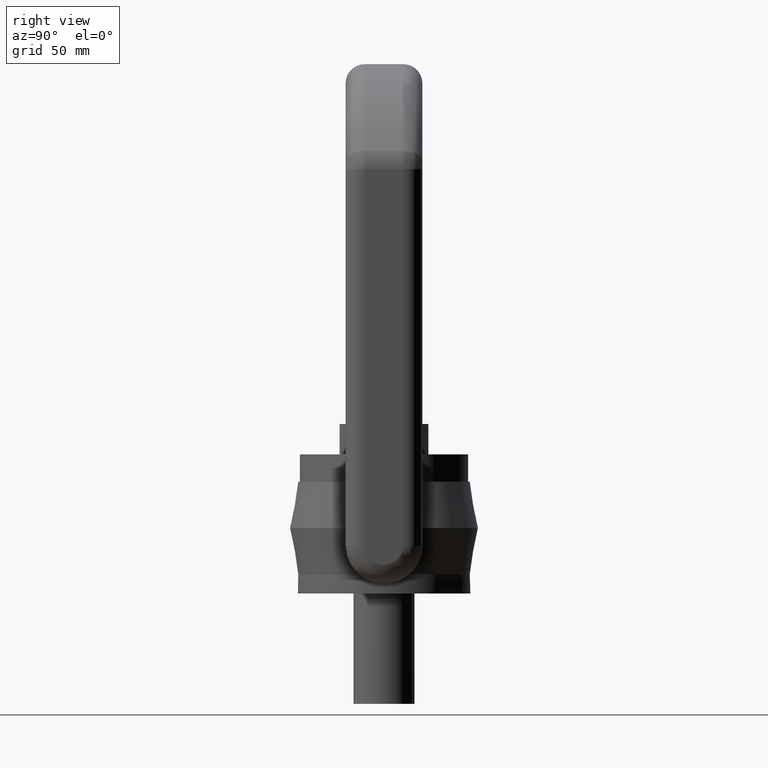
[diagram: clean part render]
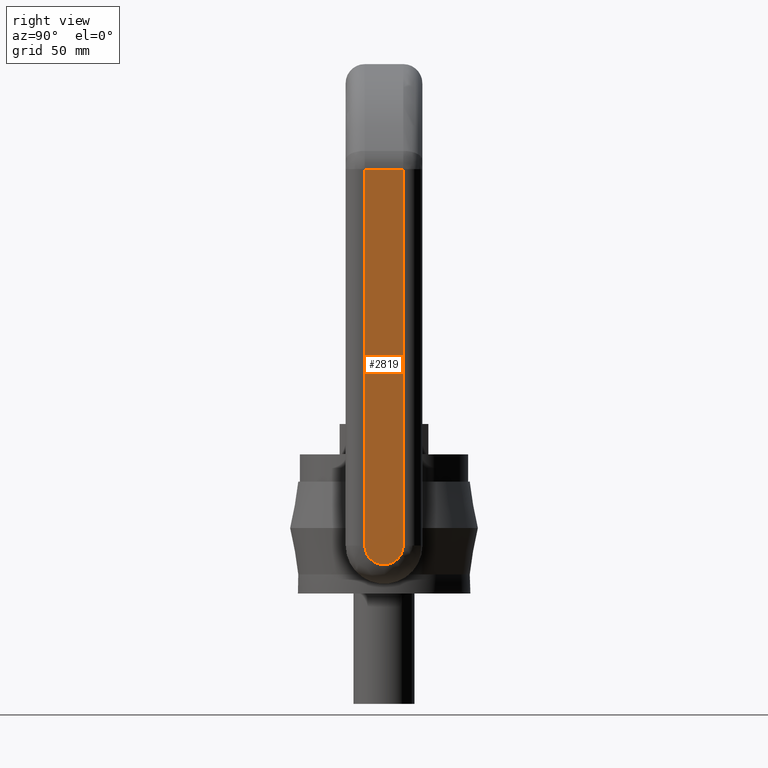
[diagram: same view with one face highlighted and labeled with its STEP entity id]
A machine part, right view. The second image highlights one B-rep face of the part: STEP entity #2819.
In plain terms, the highlighted planar face has unit normal (-1, 0, -0).
Its self-contained STEP definition (entity closure, byte-faithful):
#1867=LINE('',#7754,#2175);
#1868=LINE('',#7756,#2176);
#1869=LINE('',#7758,#2177);
#2175=VECTOR('',#6354,1.);
#2176=VECTOR('',#6355,1.);
#2177=VECTOR('',#6356,1.);
#2459=FACE_OUTER_BOUND('',#3197,.T.);
#2690=PLANE('',#5903);
#2819=ADVANCED_FACE('',(#2459),#2690,.F.);
#3197=EDGE_LOOP('',(#3735,#3736,#3737,#3738));
#3735=ORIENTED_EDGE('',*,*,#5364,.T.);
#3736=ORIENTED_EDGE('',*,*,#5365,.T.);
#3737=ORIENTED_EDGE('',*,*,#5366,.T.);
#3738=ORIENTED_EDGE('',*,*,#5367,.T.);
#4923=VERTEX_POINT('',#7752);
#4924=VERTEX_POINT('',#7753);
#4925=VERTEX_POINT('',#7755);
#4926=VERTEX_POINT('',#7757);
#5364=EDGE_CURVE('',#4923,#4924,#5790,.T.);
#5365=EDGE_CURVE('',#4924,#4925,#1867,.T.);
#5366=EDGE_CURVE('',#4925,#4926,#1868,.T.);
#5367=EDGE_CURVE('',#4926,#4923,#1869,.T.);
#5790=CIRCLE('',#5902,11.9999999999999);
#5902=AXIS2_PLACEMENT_3D('',#7751,#6352,#6353);
#5903=AXIS2_PLACEMENT_3D('',#7759,#6357,#6358);
#6352=DIRECTION('',(1.,0.,1.04738021191052E-16));
#6353=DIRECTION('',(0.,0.,1.));
#6354=DIRECTION('',(-1.04738021191052E-16,2.45391833600033E-31,1.));
#6355=DIRECTION('',(0.,-1.,0.));
#6356=DIRECTION('',(1.04738021191052E-16,0.,-1.));
#6357=DIRECTION('',(-1.,0.,-1.04738021191052E-16));
#6358=DIRECTION('',(-1.11022302462516E-16,0.,1.));
#7751=CARTESIAN_POINT('',(94.,-9.69599696040654E-14,29.9999999999999));
#7752=CARTESIAN_POINT('',(94.,-12.,29.9999999999999));
#7753=CARTESIAN_POINT('',(94.,11.9999999999998,29.9999999999999));
#7754=CARTESIAN_POINT('',(94.,11.9999999999998,265.333333333333));
#7755=CARTESIAN_POINT('',(94.,11.9999999999998,265.333333333333));
#7756=CARTESIAN_POINT('',(94.,-24.,265.333333333333));
#7757=CARTESIAN_POINT('',(94.,-12.,265.333333333333));
#7758=CARTESIAN_POINT('',(94.,-12.,29.9999999999999));
#7759=CARTESIAN_POINT('',(94.,-24.,6.));